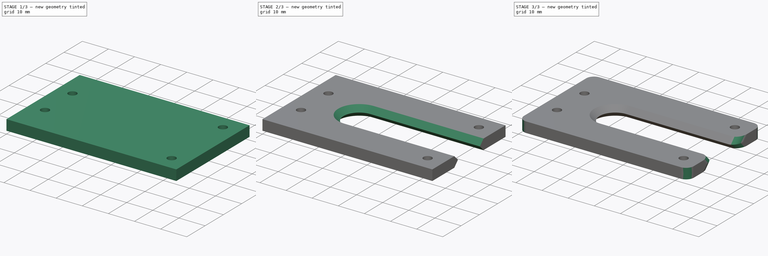
[diagram: build sequence overview — one tinted view per stage of 3, left to right]
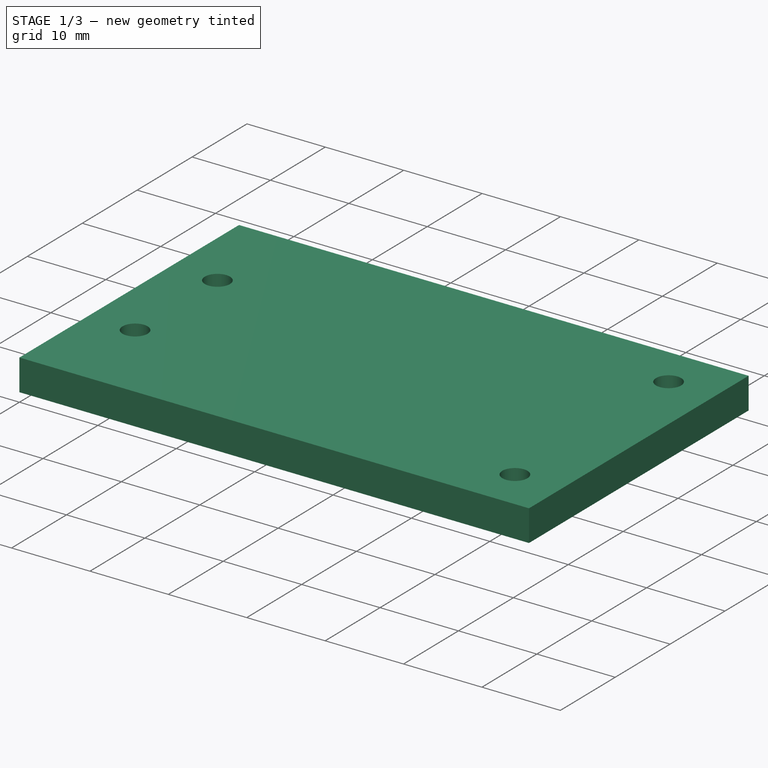
[diagram: stage 1 of 3 — iso view after this stage's code; geometry added in this stage tinted green]
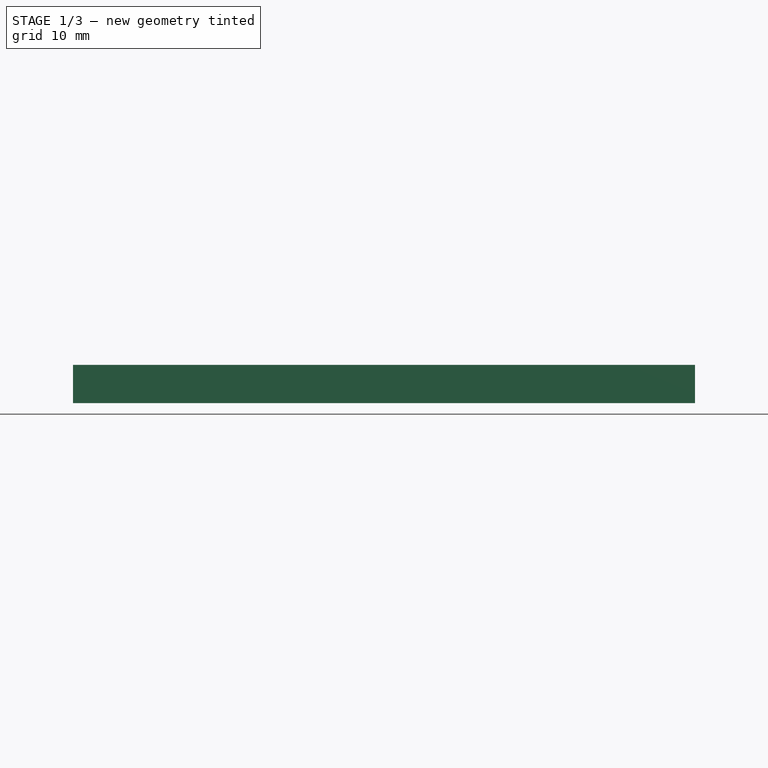
[diagram: stage 1 of 3 — front view after this stage's code; geometry added in this stage tinted green]
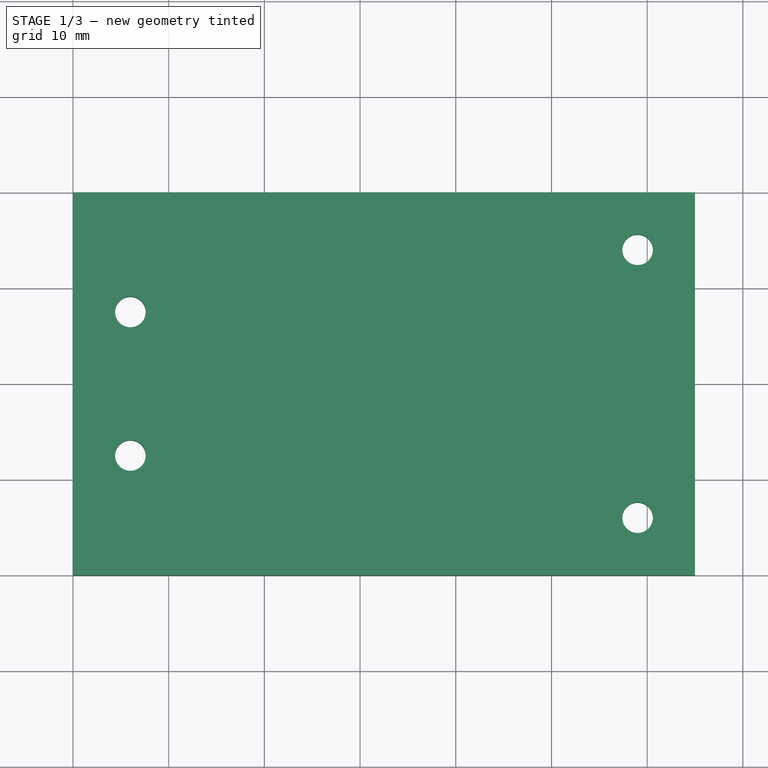
[diagram: stage 1 of 3 — top view after this stage's code; geometry added in this stage tinted green]
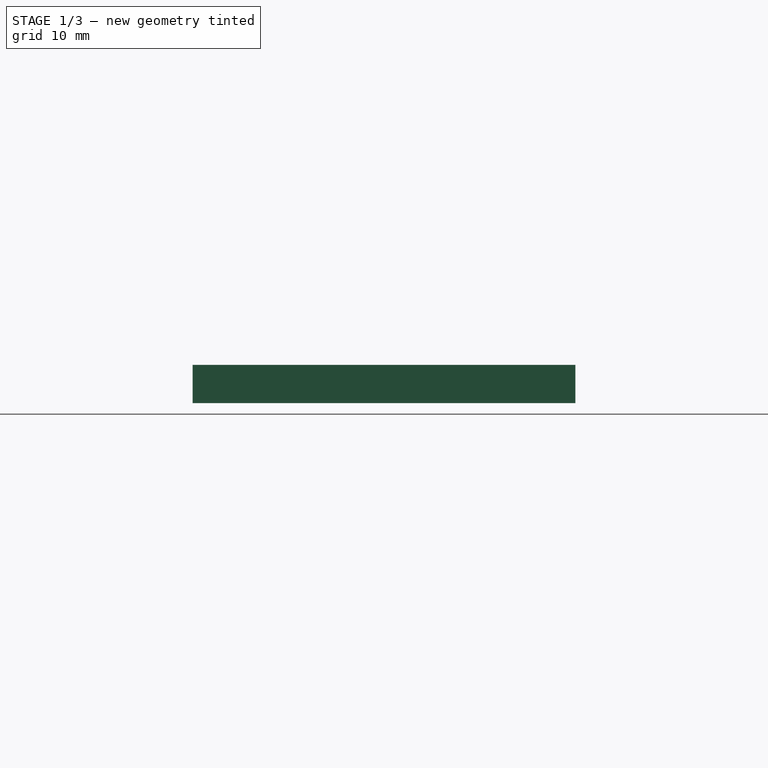
[diagram: stage 1 of 3 — right view after this stage's code; geometry added in this stage tinted green]
FCSTD DOCUMENT  (FreeCAD 0.18R14090 (Git))
Label: XBeltTensionerFrame
License: All rights reserved
LicenseURL: http://en.wikipedia.org/wiki/All_rights_reserved
objects: Sketcher::SketchObject×8, PartDesign::Plane×2, PartDesign::SubtractiveLoft×2, PartDesign::Fillet×2, PartDesign::Pad×1, PartDesign::Pocket×1, PartDesign::Body×1, App::Part×1
note: 21 computed .brp shape members not serialized (recipe doc carries the construction recipe); baked Part::Feature solids carry a one-line shape summary decoded from their .brp

FEATURE [Sketcher::SketchObject] Sketch  label="TF_BaseSketch"
  MapMode = 5
  Placement = pos=(0,0,0) rot=(0.57735,0.57735,0.57735;2.0944rad)
  Support = -> [YZ_Plane001]
  sketch-geometry (8):
    g0: LineSegment StartX=0 StartY=2 StartZ=0 EndX=-20 EndY=2 EndZ=0
    g1: LineSegment StartX=-20 StartY=2 StartZ=0 EndX=-20 EndY=0 EndZ=0
    g2: LineSegment StartX=-20 StartY=0 StartZ=0 EndX=-20 EndY=-2 EndZ=0
    g3: LineSegment StartX=-20 StartY=-2 StartZ=0 EndX=0 EndY=-2 EndZ=0
    g4: LineSegment StartX=0 StartY=-2 StartZ=0 EndX=20 EndY=-2 EndZ=0
    g5: LineSegment StartX=20 StartY=-2 StartZ=0 EndX=20 EndY=0 EndZ=0
    g6: LineSegment StartX=20 StartY=0 StartZ=0 EndX=20 EndY=2 EndZ=0
    g7: LineSegment StartX=20 StartY=2 StartZ=0 EndX=0 EndY=2 EndZ=0
  constraints (24):
    c: PointOnObject(g0,g-2)
    c: Horizontal(g0)
    c: Coincident(g1,g0)
    c: PointOnObject(g1,g-1)
    c: Coincident(g2,g1)
    c: Vertical(g2)
    c: Vertical(g1)
    c: Coincident(g3,g2)
    c: PointOnObject(g3,g-2)
    c: Horizontal(g3)
    c: Coincident(g4,g3)
    c: Horizontal(g4)
    c: Coincident(g5,g4)
    c: Vertical(g5)
    c: PointOnObject(g5,g-1)
    c: Coincident(g6,g5)
    c: Vertical(g6)
    c: Coincident(g7,g6)
    c: Coincident(g7,g0)
    c: Horizontal(g7)
    c: Equal(g3,g4)
    c: Equal(g1,g2)
    c: Distance(g0,g6) = 40
    c: Distance(g0,g2) = 4
FEATURE [PartDesign::Pad] Pad  label="TF_BasePad"
  Length = 65
  Length2 = 100
  Placement = pos=(0,0,0) rot=(0.57735,0.57735,0.57735;2.0944rad)
  Profile = -> Sketch
  Type = 0
FEATURE [Sketcher::SketchObject] Sketch003  label="TF_RailEndCenterSketch"
  MapMode = 5
  Support = -> [XY_Plane001]
  sketch-geometry (2):
    g0: Circle CenterX=23 CenterY=0 CenterZ=0 NormalX=0 NormalY=0 NormalZ=1 AngleXU=0 Radius=6
    g1: LineSegment [constr] StartX=0 StartY=0 StartZ=0 EndX=17 EndY=0 EndZ=0
  constraints (6):
    c: PointOnObject(g0,g-1)
    c: Radius(g0) = 6
    c: Coincident(g1,g-1)
    c: PointOnObject(g1,g0)
    c: Horizontal(g1)
    c: Distance(g1) = 17
FEATURE [PartDesign::Plane] DatumPlane  label="TF_TopPlane"
  AttachmentOffset = pos=(0,0,2) rot=(0,0,1;0rad)
  MapMode = 5
  Placement = pos=(0,0,2) rot=(0,0,1;0rad)
  Support = -> [XY_Plane001]
FEATURE [PartDesign::Plane] DatumPlane001  label="TF_BottomPlane"
  AttachmentOffset = pos=(0,0,-2) rot=(0,0,1;0rad)
  MapMode = 5
  Placement = pos=(0,0,-2) rot=(0,0,1;0rad)
  Support = -> [XY_Plane001]
FEATURE [Sketcher::SketchObject] Sketch004  label="TF_RailEndTopSketch"
  ExternalGeometry = -> [Sketch003]
  MapMode = 5
  Placement = pos=(0,0,2) rot=(0,0,1;0rad)
  Support = -> [DatumPlane]
  sketch-geometry (1):
    g0: Circle CenterX=23 CenterY=0 CenterZ=0 NormalX=0 NormalY=0 NormalZ=1 AngleXU=0 Radius=8
  constraints (2):
    c: Coincident(g0,g-3)
    c: Radius(g0) = 8
FEATURE [Sketcher::SketchObject] Sketch005  label="TF_RailEndBottomSketch"
  ExternalGeometry = -> [Sketch004]
  MapMode = 5
  Placement = pos=(0,0,-2) rot=(0,0,1;0rad)
  Support = -> [DatumPlane001]
  sketch-geometry (1):
    g0: Circle CenterX=23 CenterY=0 CenterZ=0 NormalX=0 NormalY=0 NormalZ=1 AngleXU=0 Radius=8
  constraints (2):
    c: Coincident(g0,g-3)
    c: Equal(g0,g-3)
FEATURE [Sketcher::SketchObject] Sketch006  label="TF_RailCenter"
  ExternalGeometry = -> [Sketch003]
  MapMode = 5
  Support = -> [XY_Plane001]
  sketch-geometry (5):
    g0: LineSegment StartX=23 StartY=0 StartZ=0 EndX=23 EndY=6 EndZ=0
    g1: LineSegment StartX=23 StartY=0 StartZ=0 EndX=23 EndY=-6 EndZ=0
    g2: LineSegment StartX=23 StartY=6 StartZ=0 EndX=123 EndY=6 EndZ=0
    g3: LineSegment StartX=23 StartY=-6 StartZ=0 EndX=123 EndY=-6 EndZ=0
    g4: LineSegment StartX=123 StartY=6 StartZ=0 EndX=123 EndY=-6 EndZ=0
  constraints (14):
    c: Coincident(g0,g-3)
    c: PointOnObject(g0,g-3)
    c: Vertical(g0)
    c: Coincident(g1,g0)
    c: PointOnObject(g1,g-3)
    c: Vertical(g1)
    c: Coincident(g2,g0)
    c: Horizontal(g2)
    c: Coincident(g3,g1)
    c: Horizontal(g3)
    c: Coincident(g4,g2)
    c: Coincident(g4,g3)
    c: Vertical(g4)
    c: Distance(g2) = 100
FEATURE [Sketcher::SketchObject] Sketch007  label="TF_RailTop"
  ExternalGeometry = -> [Sketch006,Sketch004]
  MapMode = 5
  Placement = pos=(0,0,2) rot=(0,0,1;0rad)
  Support = -> [DatumPlane]
  sketch-geometry (6):
    g0: LineSegment StartX=23 StartY=0 StartZ=0 EndX=23 EndY=8 EndZ=0
    g1: LineSegment StartX=23 StartY=0 StartZ=0 EndX=23 EndY=-8 EndZ=0
    g2: LineSegment StartX=23 StartY=8 StartZ=0 EndX=123 EndY=8 EndZ=0
    g3: LineSegment StartX=23 StartY=-8 StartZ=0 EndX=123 EndY=-8 EndZ=0
    g4: LineSegment StartX=123 StartY=8 StartZ=0 EndX=123 EndY=-8 EndZ=0
    g5: LineSegment [constr] StartX=123 StartY=6 StartZ=0 EndX=123 EndY=8 EndZ=0
  constraints (16):
    c: Coincident(g0,g-4)
    c: PointOnObject(g0,g-4)
    c: Vertical(g0)
    c: Coincident(g1,g0)
    c: PointOnObject(g1,g-4)
    c: Vertical(g1)
    c: Coincident(g2,g0)
    c: Horizontal(g2)
    c: Coincident(g3,g1)
    c: Horizontal(g3)
    c: Coincident(g4,g2)
    c: Coincident(g4,g3)
    c: Vertical(g4)
    c: Coincident(g5,g-3)
    c: Coincident(g5,g2)
    c: Vertical(g5)
FEATURE [Sketcher::SketchObject] Sketch008  label="TF_RailBottom"
  ExternalGeometry = -> [Sketch007]
  MapMode = 5
  Placement = pos=(0,0,-2) rot=(0,0,1;0rad)
  Support = -> [DatumPlane001]
  sketch-geometry (5):
    g0: LineSegment StartX=23 StartY=8 StartZ=0 EndX=23 EndY=0 EndZ=0
    g1: LineSegment StartX=23 StartY=0 StartZ=0 EndX=23 EndY=-8 EndZ=0
    g2: LineSegment StartX=23 StartY=-8 StartZ=0 EndX=123 EndY=-8 EndZ=0
    g3: LineSegment StartX=123 StartY=-8 StartZ=0 EndX=123 EndY=8 EndZ=0
    g4: LineSegment StartX=123 StartY=8 StartZ=0 EndX=23 EndY=8 EndZ=0
  constraints (10):
    c: Coincident(g0,g-4)
    c: Coincident(g0,g-5)
    c: Coincident(g1,g0)
    c: Coincident(g1,g-5)
    c: Coincident(g2,g1)
    c: Coincident(g2,g-3)
    c: Coincident(g3,g2)
    c: Coincident(g3,g-3)
    c: Coincident(g4,g3)
    c: Coincident(g4,g0)
FEATURE [Sketcher::SketchObject] Sketch009  label="TF_ScrewHolesSketch"
  ExternalGeometry = -> [Sketch]
  MapMode = 5
  Support = -> [XY_Plane001]
  sketch-geometry (6):
    g0: Circle CenterX=6 CenterY=7.5 CenterZ=0 NormalX=0 NormalY=0 NormalZ=1 AngleXU=0 Radius=1.6
    g1: Circle CenterX=6 CenterY=-7.5 CenterZ=0 NormalX=0 NormalY=0 NormalZ=1 AngleXU=0 Radius=1.6
    g2: LineSegment [constr] StartX=2e-12 StartY=20 StartZ=0 EndX=59 EndY=20 EndZ=0
    g3: LineSegment [constr] StartX=59 StartY=20 StartZ=0 EndX=59 EndY=14 EndZ=0
    g4: Circle CenterX=59 CenterY=-14 CenterZ=0 NormalX=0 NormalY=0 NormalZ=1 AngleXU=0 Radius=1.6
    g5: Circle CenterX=59 CenterY=14 CenterZ=0 NormalX=0 NormalY=0 NormalZ=1 AngleXU=0 Radius=1.6
  constraints (15):
    c: Symmetric(g0,g1,g-1)
    c: Equal(g0,g1)
    c: Radius(g0) = 1.6
    c: DistanceX(g-2,g0) = 6
    c: Coincident(g2,g-3)
    c: Horizontal(g2)
    c: Distance(g2) = 59
    c: Coincident(g3,g2)
    c: Vertical(g3)
    c: Distance(g3) = 6
    c: Equal(g5,g4)
    c: Symmetric(g5,g4,g-1)
    c: Radius(g5) = 1.6
    c: Coincident(g5,g3)
    c: Distance(g0,g1) = 15
FEATURE [PartDesign::Pocket] Pocket  label="TF_ScrewHolesPocket"
  BaseFeature = -> Pad
  Length = 5
  Length2 = 100
  Midplane = true
  Placement = pos=(0,0,0) rot=(0.57735,0.57735,0.57735;2.0944rad)
  Profile = -> Sketch009
  Type = 1
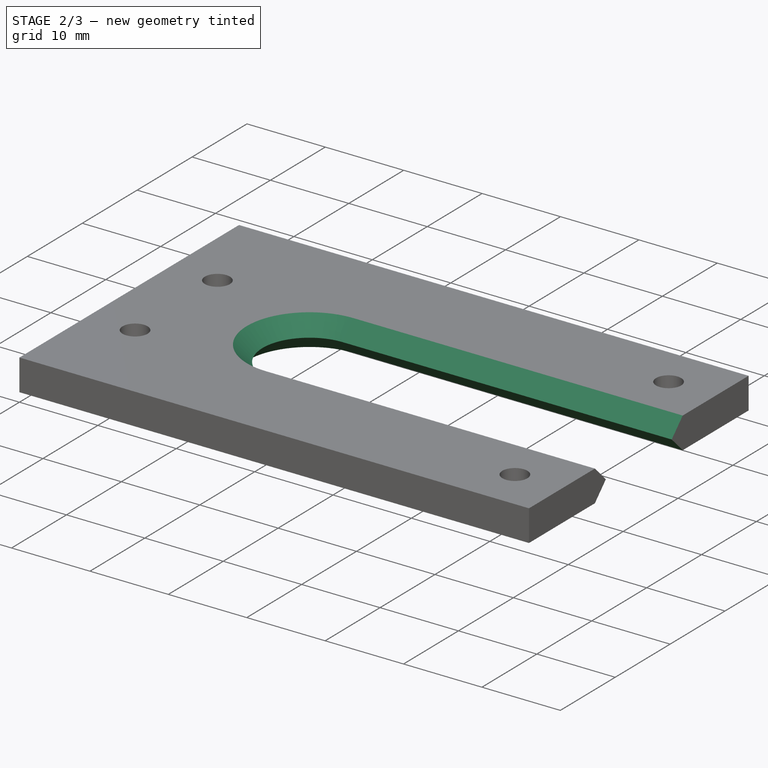
[diagram: stage 2 of 3 — iso view after this stage's code; geometry added in this stage tinted green]
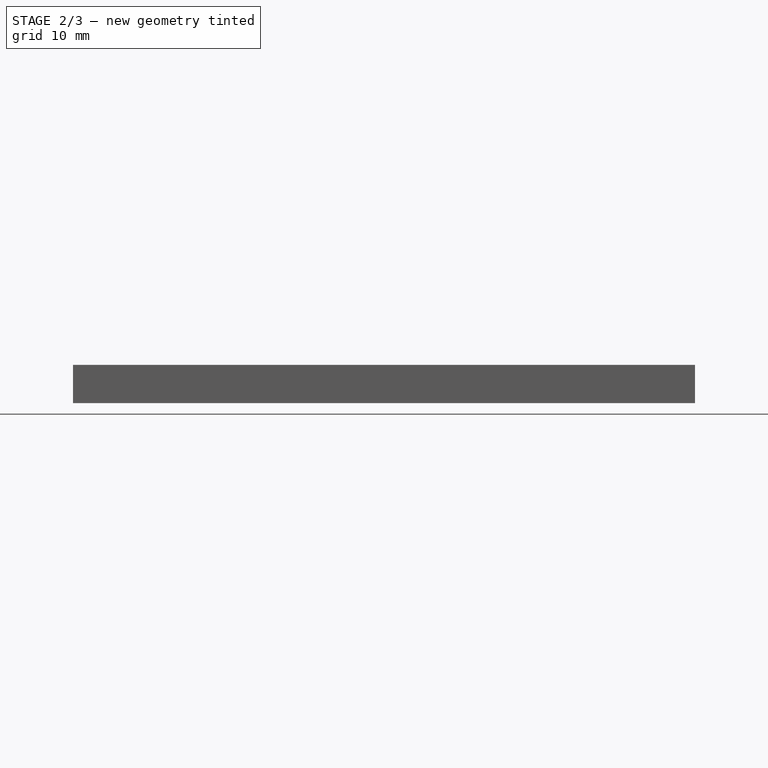
[diagram: stage 2 of 3 — front view after this stage's code; geometry added in this stage tinted green]
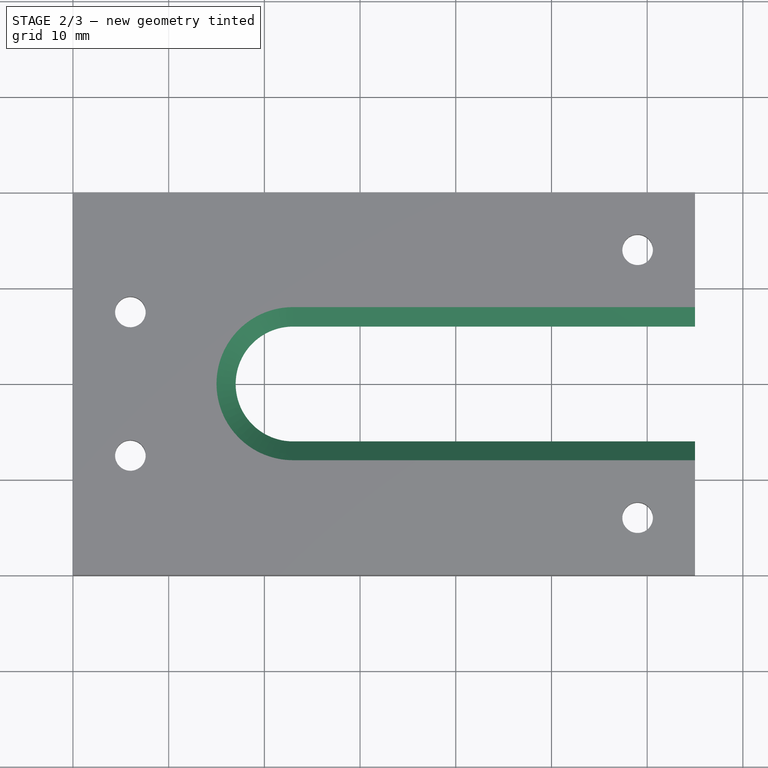
[diagram: stage 2 of 3 — top view after this stage's code; geometry added in this stage tinted green]
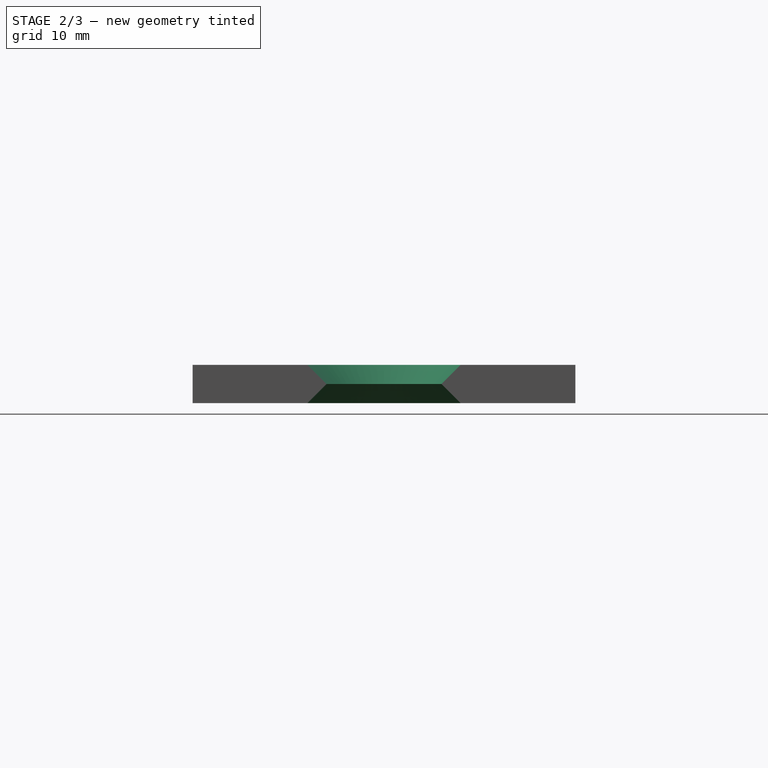
[diagram: stage 2 of 3 — right view after this stage's code; geometry added in this stage tinted green]
FEATURE [PartDesign::SubtractiveLoft] SubtractiveLoft  label="TF_RailEndLoft"
  BaseFeature = -> Pocket
  Closed = false
  Placement = pos=(0,0,0) rot=(0.57735,0.57735,0.57735;2.0944rad)
  Profile = -> Sketch004
  Ruled = true
  Sections = -> [Sketch003,Sketch005]
FEATURE [PartDesign::SubtractiveLoft] SubtractiveLoft001  label="TF_RailLoft"
  BaseFeature = -> SubtractiveLoft
  Closed = false
  Placement = pos=(0,0,0) rot=(0.57735,0.57735,0.57735;2.0944rad)
  Profile = -> Sketch007
  Ruled = true
  Sections = -> [Sketch006,Sketch008]
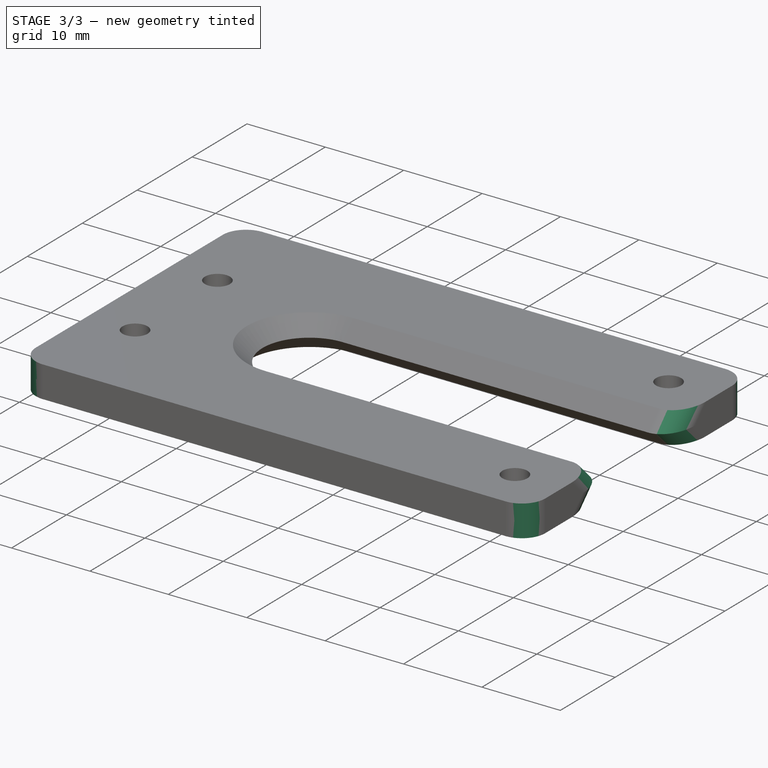
[diagram: stage 3 of 3 — iso view after this stage's code; geometry added in this stage tinted green]
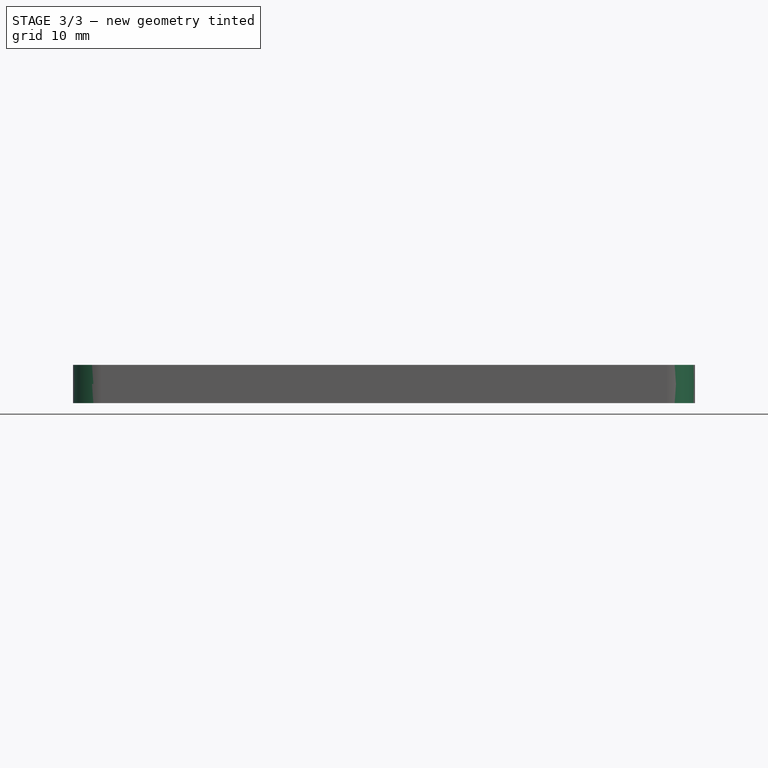
[diagram: stage 3 of 3 — front view after this stage's code; geometry added in this stage tinted green]
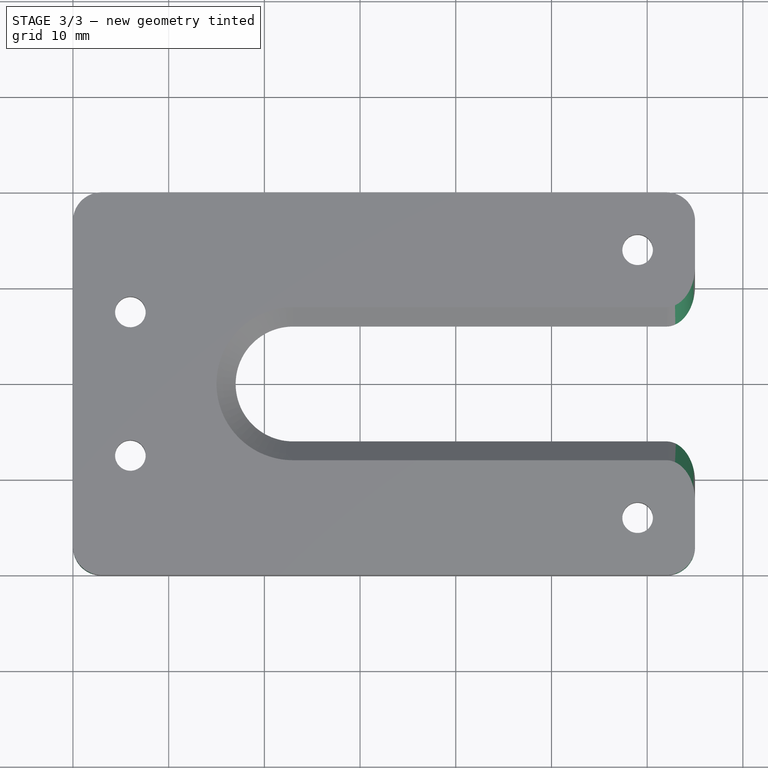
[diagram: stage 3 of 3 — top view after this stage's code; geometry added in this stage tinted green]
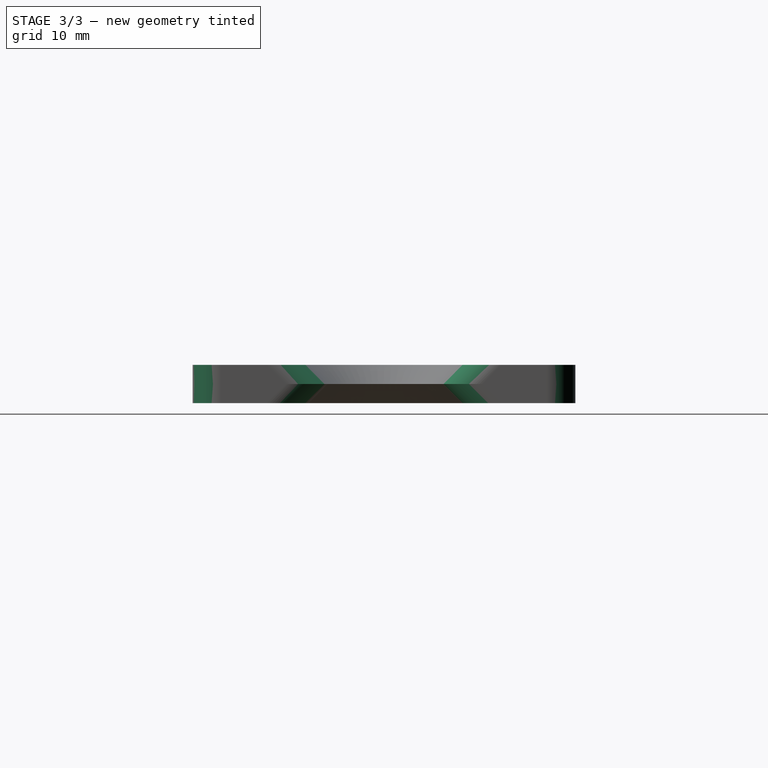
[diagram: stage 3 of 3 — right view after this stage's code; geometry added in this stage tinted green]
FEATURE [PartDesign::Fillet] Fillet  label="FrameFillet"
  Base = -> SubtractiveLoft001 [Edge23,Edge16,Edge21,Edge38]
  BaseFeature = -> SubtractiveLoft001
  Placement = pos=(0,0,0) rot=(0.57735,0.57735,0.57735;2.0944rad)
  Radius = 3
FEATURE [PartDesign::Fillet] Fillet001  label="RailFillet"
  Base = -> Fillet [Edge35,Edge39,Edge69,Edge67]
  BaseFeature = -> Fillet
  Placement = pos=(0,0,0) rot=(0.57735,0.57735,0.57735;2.0944rad)
  Radius = 3
FEATURE [PartDesign::Body] Body  label="TensionerFrameBody"
  Group = -> [Sketch,Pad,Sketch009,Pocket,Sketch003,DatumPlane,DatumPlane001,Sketch004,Sketch005,SubtractiveLoft,Sketch006,Sketch007,Sketch008,SubtractiveLoft001,Fillet,Fillet001]
  Origin = -> Origin001
  Tip = -> Fillet001
FEATURE [App::Part] Part  label="TensionerFramePart"
  Group = -> [Body]
  License = CC BY 3.0
  LicenseURL = http://creativecommons.org/licenses/by/3.0/
  Origin = -> Origin
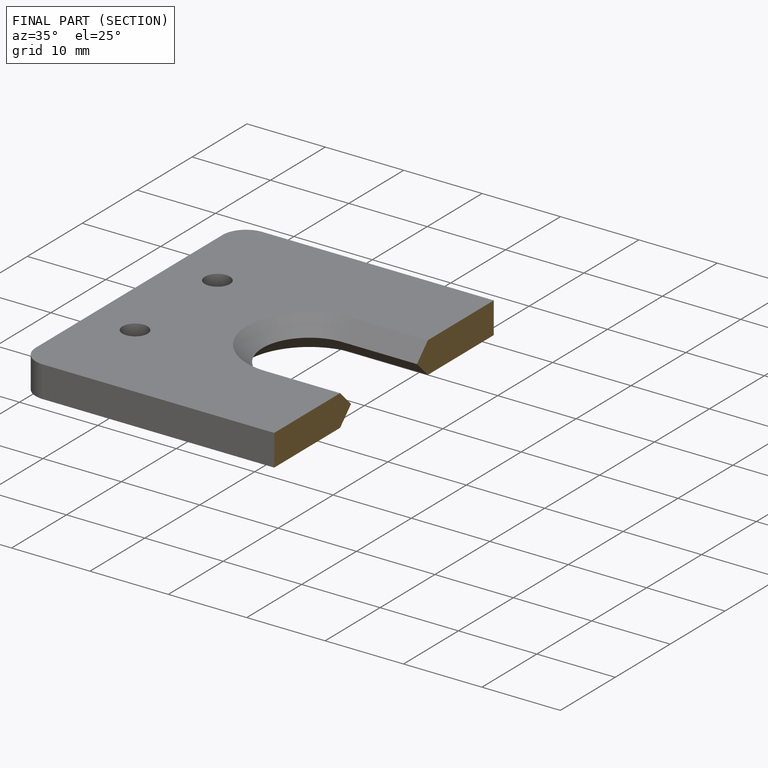
[diagram: finished part — half-section view (interior)]
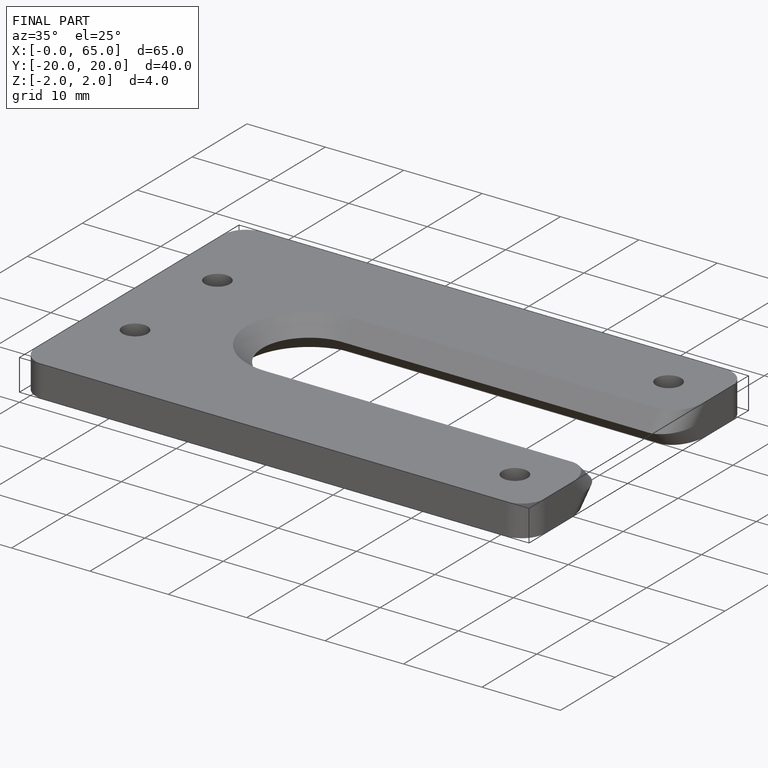
[diagram: finished part — iso view with bounding-box wireframe]
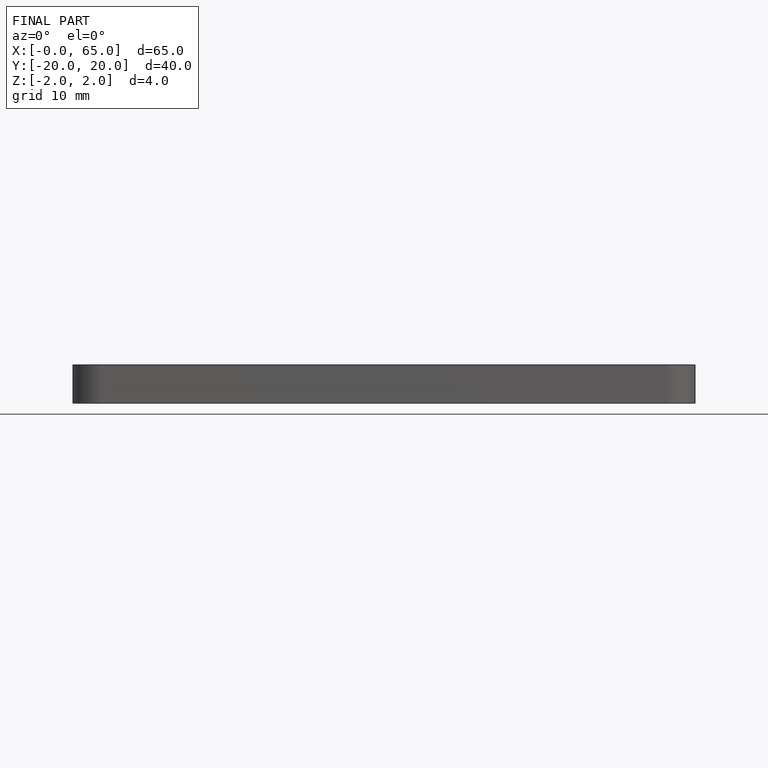
[diagram: finished part — front view with bounding-box wireframe]
